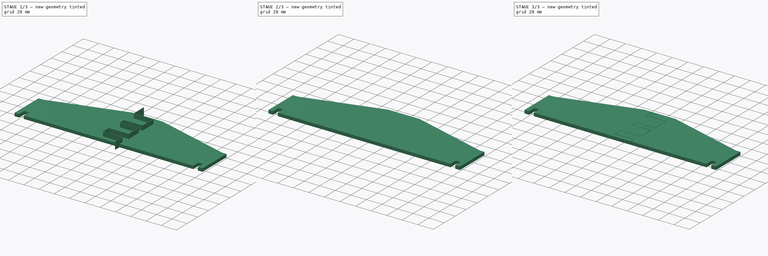
[diagram: build sequence overview — one tinted view per stage of 3, left to right]
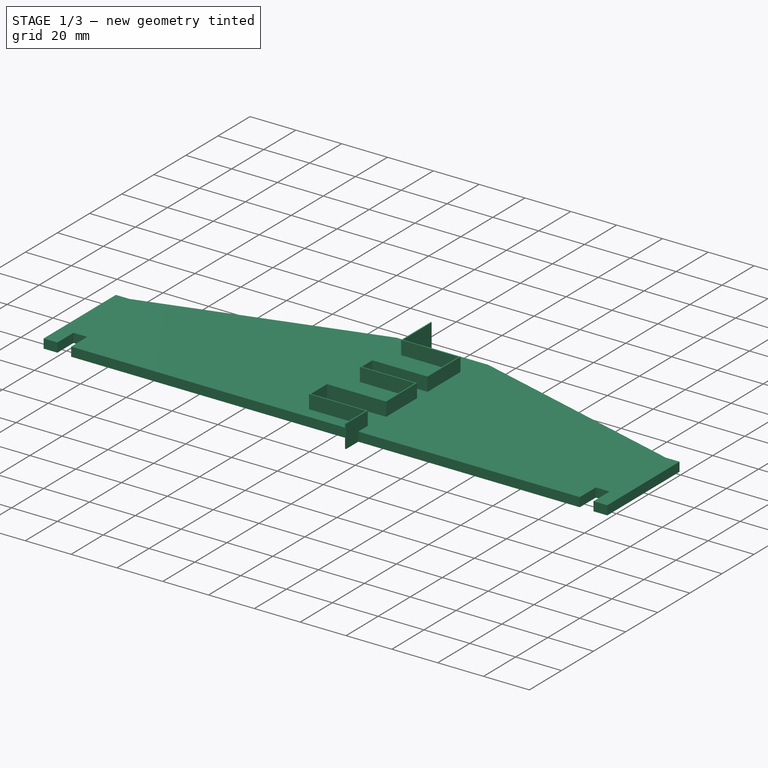
[diagram: stage 1 of 3 — iso view after this stage's code; geometry added in this stage tinted green]
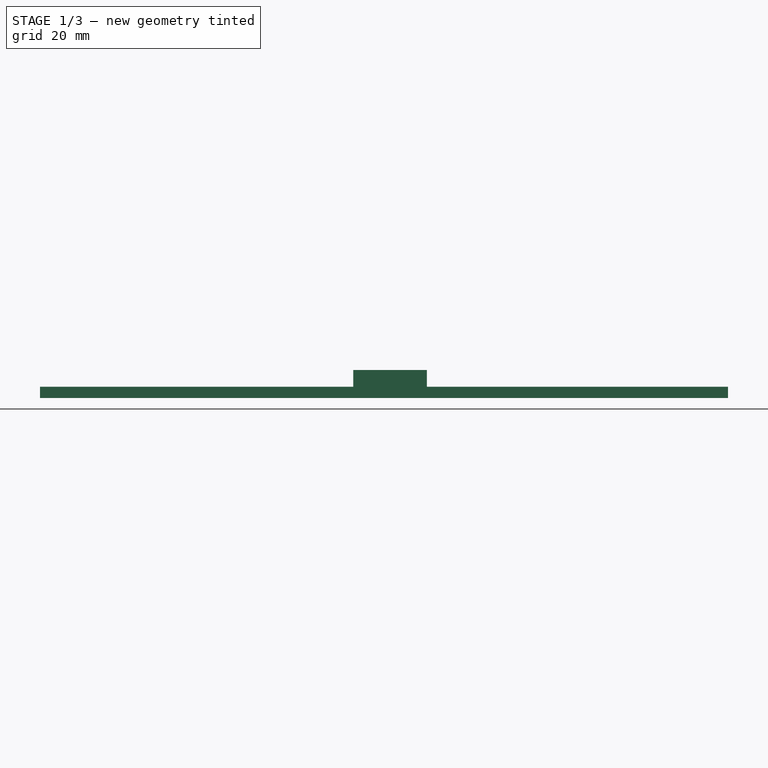
[diagram: stage 1 of 3 — front view after this stage's code; geometry added in this stage tinted green]
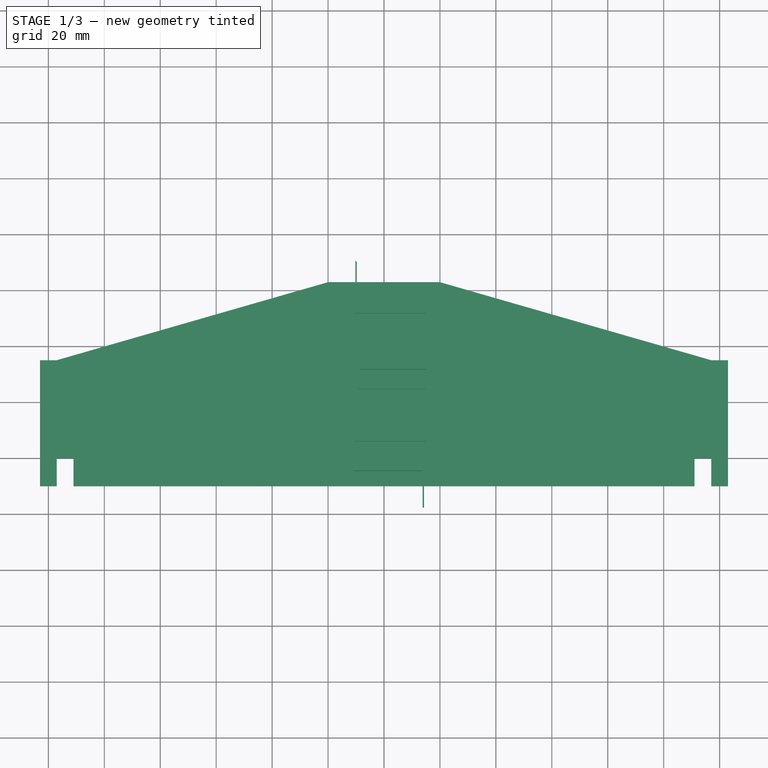
[diagram: stage 1 of 3 — top view after this stage's code; geometry added in this stage tinted green]
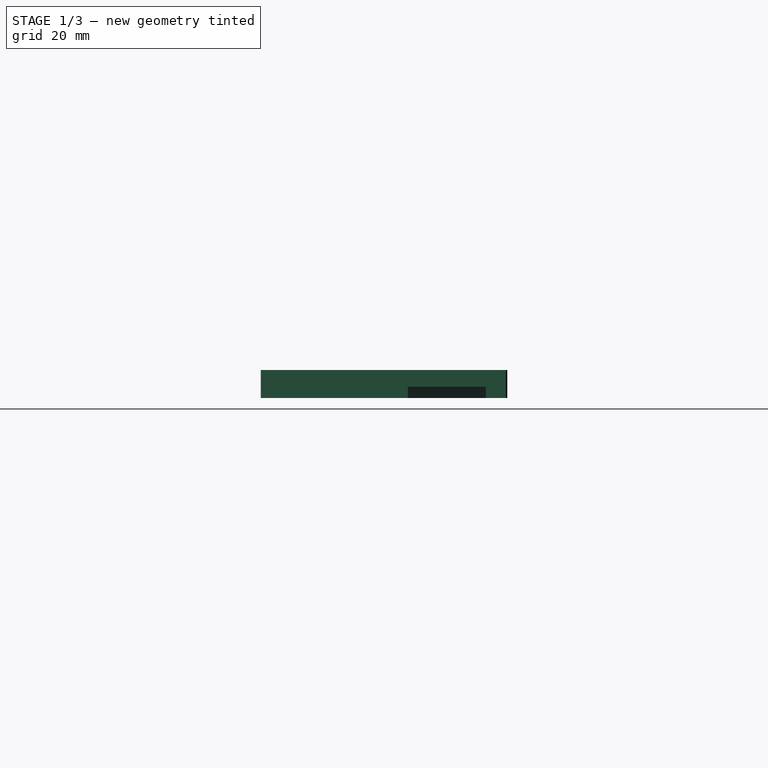
[diagram: stage 1 of 3 — right view after this stage's code; geometry added in this stage tinted green]
FCSTD DOCUMENT  (FreeCAD 0.19R24366 (Git))
Label: lid-holder-side
License: All rights reserved
LicenseURL: http://en.wikipedia.org/wiki/All_rights_reserved
objects: Sketcher::SketchObject×3, Part::FeaturePython×3, PartDesign::Body×2, Part::Extrusion×1, PartDesign::Pad×1, App::DocumentObjectGroup×1
note: 11 computed .brp shape members not serialized (recipe doc carries the construction recipe); baked Part::Feature solids carry a one-line shape summary decoded from their .brp

FEATURE [Sketcher::SketchObject] Sketch
  FullyConstrained = false
  MapMode = 5
  Support = -> [XY_Plane]
  sketch-geometry (18):
    g0: LineSegment StartX=-123 StartY=-10 StartZ=0 EndX=-123 EndY=35 EndZ=0
    g1: LineSegment StartX=-117 StartY=35 StartZ=0 EndX=-20 EndY=62.8984 EndZ=0
    g2: LineSegment StartX=-20 StartY=62.8984 StartZ=0 EndX=20 EndY=62.8984 EndZ=0
    g3: LineSegment StartX=20 StartY=62.8984 StartZ=0 EndX=117 EndY=35 EndZ=0
    g4: LineSegment StartX=123 StartY=35 StartZ=0 EndX=123 EndY=-10 EndZ=0
    g5: LineSegment StartX=123 StartY=-10 StartZ=0 EndX=117 EndY=-10 EndZ=0
    g6: LineSegment StartX=117 StartY=-10 StartZ=0 EndX=117 EndY=0 EndZ=0
    g7: LineSegment StartX=117 StartY=0 StartZ=0 EndX=111 EndY=0 EndZ=0
    g8: LineSegment StartX=111 StartY=0 StartZ=0 EndX=111 EndY=-10 EndZ=0
    g9: LineSegment StartX=111 StartY=-10 StartZ=0 EndX=105 EndY=-10 EndZ=0
    g10: LineSegment StartX=-111 StartY=-10 StartZ=0 EndX=-105 EndY=-10 EndZ=0
    g11: LineSegment StartX=-111 StartY=-4e-16 StartZ=0 EndX=-117 EndY=-4e-16 EndZ=0
    g12: LineSegment StartX=-117 StartY=-4e-16 StartZ=0 EndX=-117 EndY=-10 EndZ=0
    g13: LineSegment StartX=-117 StartY=-10 StartZ=0 EndX=-123 EndY=-10 EndZ=0
    g14: LineSegment StartX=-111 StartY=-4e-16 StartZ=0 EndX=-111 EndY=-10 EndZ=0
    g15: LineSegment StartX=-105 StartY=-10 StartZ=0 EndX=105 EndY=-10 EndZ=0
    g16: LineSegment StartX=-123 StartY=35 StartZ=0 EndX=-117 EndY=35 EndZ=0
    g17: LineSegment StartX=117 StartY=35 StartZ=0 EndX=123 EndY=35 EndZ=0
  constraints (48):
    c: Coincident(g0,g13)
    c: Coincident(g13,g12)
    c: Coincident(g12,g11)
    c: Coincident(g8,g7)
    c: Coincident(g9,g8)
    c: Coincident(g6,g5)
    c: Coincident(g4,g5)
    c: Horizontal(g11)
    c: Horizontal(g7)
    c: Horizontal(g5)
    c: Horizontal(g9)
    c: Horizontal(g13)
    c: Horizontal(g10)
    c: Vertical(g0)
    c: Vertical(g12)
    c: Vertical(g14)
    c: Vertical(g8)
    c: Vertical(g6)
    c: Vertical(g4)
    c: Coincident(g1,g2)
    c: Coincident(g3,g2)
    c: Coincident(g7,g6)
    c: Coincident(g14,g10)
    c: Coincident(g11,g14)
    c: Equal(g13,g11)
    c: Equal(g11,g10)
    c: Equal(g9,g7)
    c: Equal(g7,g5)
    c: DistanceX(g5,g5) = 6
    c: DistanceY(g12,g12) = 10
    c: Equal(g12,g14)
    c: Equal(g14,g8)
    c: Equal(g8,g6)
    c: DistanceX(g2,g2) = 40
    c: Symmetric(g1,g2,g-2)
    c: DistanceX(g11,g7) = 222
    c: Symmetric(g11,g7,g-1)
    c: DistanceY(g0,g0) = 45
    c: Coincident(g15,g10)
    c: Coincident(g15,g9)
    c: Horizontal(g15)
    c: DistanceY(g4,g4) = 45
    c: Coincident(g16,g0)
    c: Coincident(g16,g1)
    c: Horizontal(g16)
    c: Coincident(g17,g3)
    c: Coincident(g17,g4)
    c: Horizontal(g17)
FEATURE [Sketcher::SketchObject] Sketch001
  FullyConstrained = true
  MapMode = 5
  Support = -> [XY_Plane]
FEATURE [Sketcher::SketchObject] Sketch002
  FullyConstrained = false
  MapMode = 5
  Support = -> [XY_Plane001]
  sketch-geometry (24):
    g0: LineSegment StartX=-10.2339 StartY=70.534 StartZ=0 EndX=-10.2339 EndY=51.739 EndZ=0
    g1: LineSegment StartX=-10.2339 StartY=51.739 StartZ=0 EndX=14.8242 EndY=51.739 EndZ=0
    g2: LineSegment StartX=14.8242 StartY=51.739 StartZ=0 EndX=14.8242 EndY=32.2373 EndZ=0
    g3: LineSegment StartX=14.8242 StartY=32.2373 StartZ=0 EndX=-9.24099 EndY=32.2373 EndZ=0
    g4: LineSegment StartX=-9.24099 StartY=32.2373 StartZ=0 EndX=-9.24099 EndY=24.648 EndZ=0
    g5: LineSegment StartX=-9.24099 StartY=24.648 StartZ=0 EndX=14.8148 EndY=24.648 EndZ=0
    g6: LineSegment StartX=14.8148 StartY=24.648 StartZ=0 EndX=14.8148 EndY=6.42188 EndZ=0
    g7: LineSegment StartX=14.8148 StartY=6.42188 StartZ=0 EndX=-10.9786 EndY=6.42188 EndZ=0
    g8: LineSegment StartX=-10.9786 StartY=6.42188 StartZ=0 EndX=-10.9786 EndY=-4.60801 EndZ=0
    g9: LineSegment StartX=-10.9786 StartY=-4.60801 StartZ=0 EndX=13.8165 EndY=-4.60801 EndZ=0
    g10: LineSegment StartX=13.8165 StartY=-4.60801 StartZ=0 EndX=13.8165 EndY=-17.5858 EndZ=0
    g11: LineSegment StartX=13.8165 StartY=-17.5858 StartZ=0 EndX=14.3165 EndY=-17.5858 EndZ=0
    g12: LineSegment StartX=14.3165 StartY=-17.5858 StartZ=0 EndX=14.3165 EndY=-4.10801 EndZ=0
    g13: LineSegment StartX=14.3165 StartY=-4.10801 StartZ=0 EndX=-10.4786 EndY=-4.10801 EndZ=0
    g14: LineSegment StartX=-10.4786 StartY=-4.10801 StartZ=0 EndX=-10.4786 EndY=5.92188 EndZ=0
    g15: LineSegment StartX=-10.4786 StartY=5.92188 StartZ=0 EndX=15.3148 EndY=5.92188 EndZ=0
    g16: LineSegment StartX=15.3148 StartY=5.92188 StartZ=0 EndX=15.3148 EndY=25.148 EndZ=0
    g17: LineSegment StartX=15.3148 StartY=25.148 StartZ=0 EndX=-8.74099 EndY=25.148 EndZ=0
    g18: LineSegment StartX=-8.74099 StartY=25.148 StartZ=0 EndX=-8.74099 EndY=31.7373 EndZ=0
    g19: LineSegment StartX=-8.74099 StartY=31.7373 StartZ=0 EndX=15.3242 EndY=31.7373 EndZ=0
    g20: LineSegment StartX=15.3242 StartY=31.7373 StartZ=0 EndX=15.3242 EndY=52.239 EndZ=0
    g21: LineSegment StartX=15.3242 StartY=52.239 StartZ=0 EndX=-9.73389 EndY=52.239 EndZ=0
    g22: LineSegment StartX=-9.73389 StartY=52.239 StartZ=0 EndX=-9.73389 EndY=70.0375 EndZ=0
    g23: LineSegment StartX=-9.73389 StartY=70.0375 StartZ=0 EndX=-10.2339 EndY=70.534 EndZ=0
  constraints (58):
    c: Vertical(g0)
    c: Coincident(g0,g1)
    c: Horizontal(g1)
    c: Coincident(g1,g2)
    c: Vertical(g2)
    c: Coincident(g2,g3)
    c: Horizontal(g3)
    c: Coincident(g3,g4)
    c: Vertical(g4)
    c: Coincident(g4,g5)
    c: Horizontal(g5)
    c: Coincident(g5,g6)
    c: Vertical(g6)
    c: Coincident(g6,g7)
    c: Horizontal(g7)
    c: Coincident(g7,g8)
    c: Vertical(g8)
    c: Coincident(g8,g9)
    c: Horizontal(g9)
    c: Coincident(g9,g10)
    c: Vertical(g10)
    c: Coincident(g10,g11)
    c: Horizontal(g11)
    c: Coincident(g11,g12)
    c: Vertical(g12)
    c: Coincident(g12,g13)
    c: Horizontal(g13)
    c: Coincident(g13,g14)
    c: Vertical(g14)
    c: Coincident(g14,g15)
    c: Horizontal(g15)
    c: Coincident(g15,g16)
    c: Vertical(g16)
    c: Coincident(g16,g17)
    c: Coincident(g17,g18)
    c: Vertical(g18)
    c: Coincident(g18,g19)
    c: Horizontal(g19)
    c: Coincident(g19,g20)
    c: Coincident(g20,g21)
    c: Horizontal(g21)
    c: Coincident(g21,g22)
    c: Vertical(g22)
    c: Coincident(g22,g23)
    c: Coincident(g23,g0)
    c: DistanceX(g0,g22) = 0.5
    c: DistanceY(g0,g21) = 0.5
    c: DistanceX(g1,g20) = 0.5
    c: DistanceX(g2,g19) = 0.5
    c: DistanceY(g19,g2) = 0.5
    c: DistanceX(g3,g18) = 0.5
    c: DistanceY(g4,g17) = 0.5
    c: DistanceY(g5,g16) = 0.5
    c: DistanceX(g5,g16) = 0.5
    c: DistanceY(g15,g6) = 0.5
    c: DistanceX(g7,g14) = 0.5
    c: DistanceY(g8,g13) = 0.5
    c: DistanceX(g9,g12) = 0.5
FEATURE [PartDesign::Body] Body001
  Group = -> [Sketch002]
  Origin = -> Origin001
FEATURE [Part::Extrusion] Extrude
  Base = -> Sketch002
  Dir = (0,0,1)
  DirMode = 2
  FaceMakerClass = Part::FaceMakerBullseye
  LengthFwd = 10
  LengthRev = 0
  Solid = true
  Symmetric = false
FEATURE [PartDesign::Pad] Pad
  Direction = (1,1,1)
  Length = 4
  Length2 = 100
  Profile = -> Sketch
  Type = 0
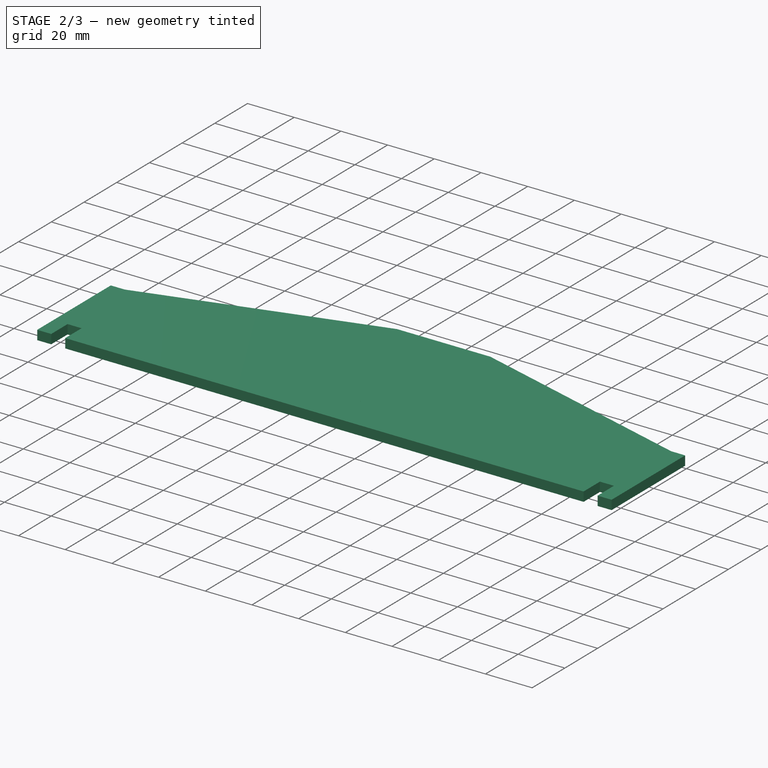
[diagram: stage 2 of 3 — iso view after this stage's code; geometry added in this stage tinted green]
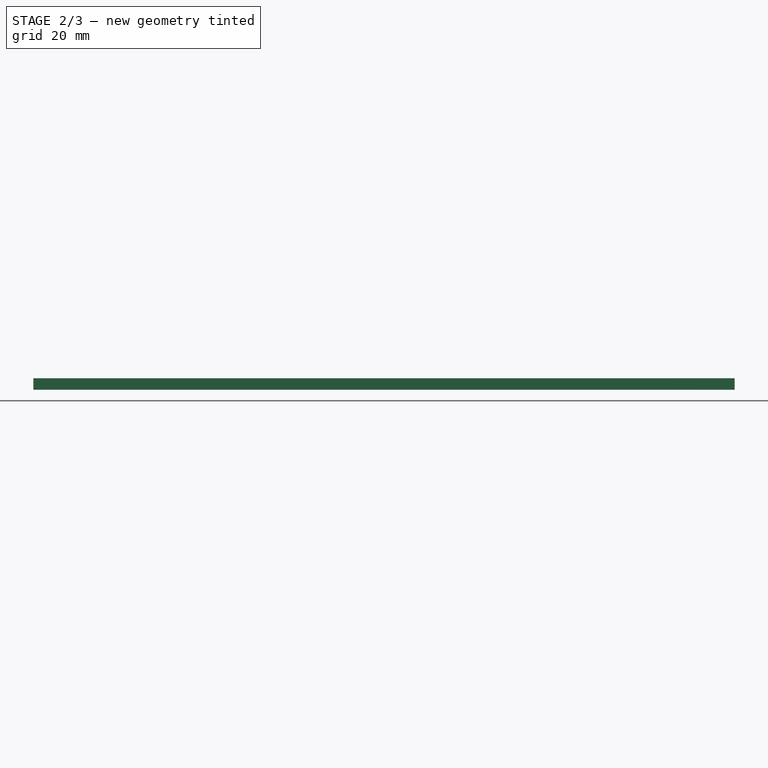
[diagram: stage 2 of 3 — front view after this stage's code; geometry added in this stage tinted green]
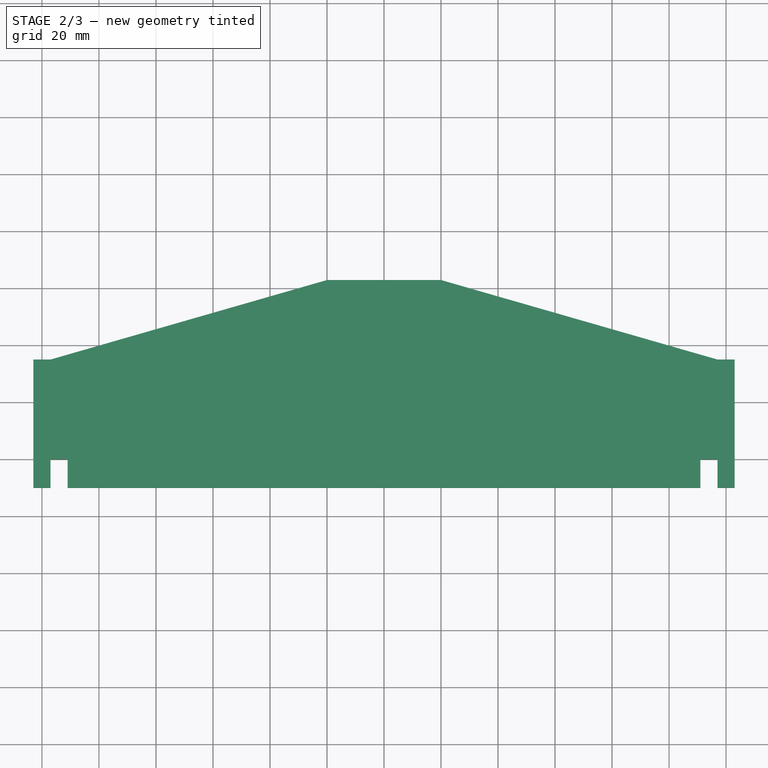
[diagram: stage 2 of 3 — top view after this stage's code; geometry added in this stage tinted green]
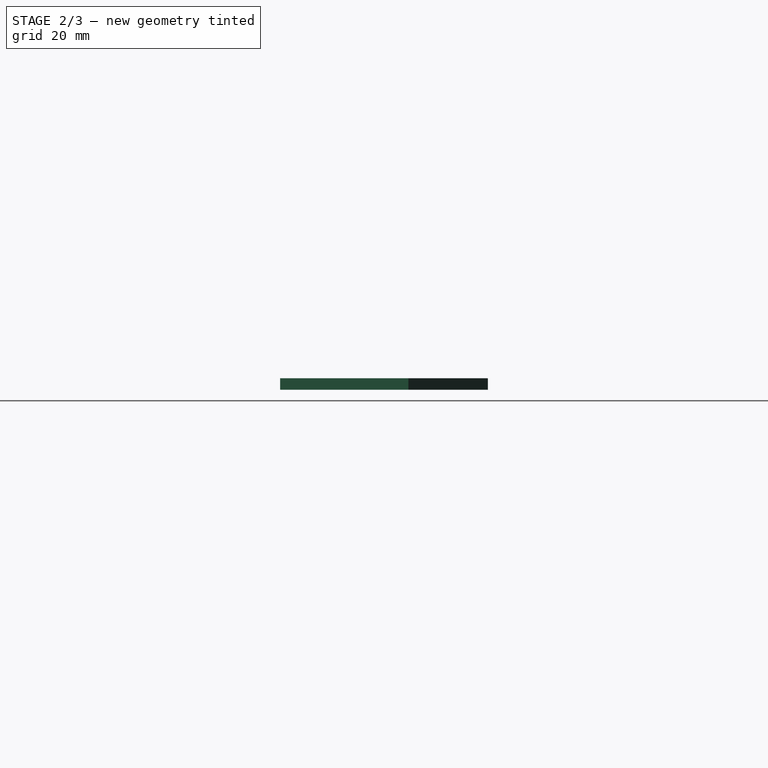
[diagram: stage 2 of 3 — right view after this stage's code; geometry added in this stage tinted green]
FEATURE [PartDesign::Body] Body
  Group = -> [Sketch,Pad,Sketch001]
  Origin = -> Origin
  Tip = -> Pad
FEATURE [Part::FeaturePython] Slice  # WARN: FeaturePython — macro-defined, semantics opaque (R4)
  Base = -> Body
  Mode = 1
  Tolerance = 0
  Tools = -> [Extrude]
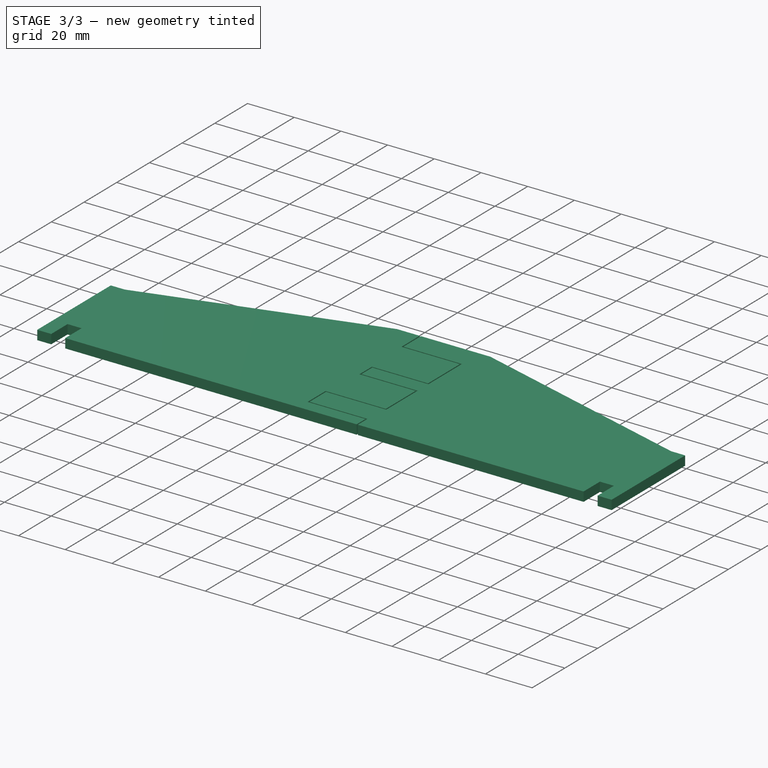
[diagram: stage 3 of 3 — iso view after this stage's code; geometry added in this stage tinted green]
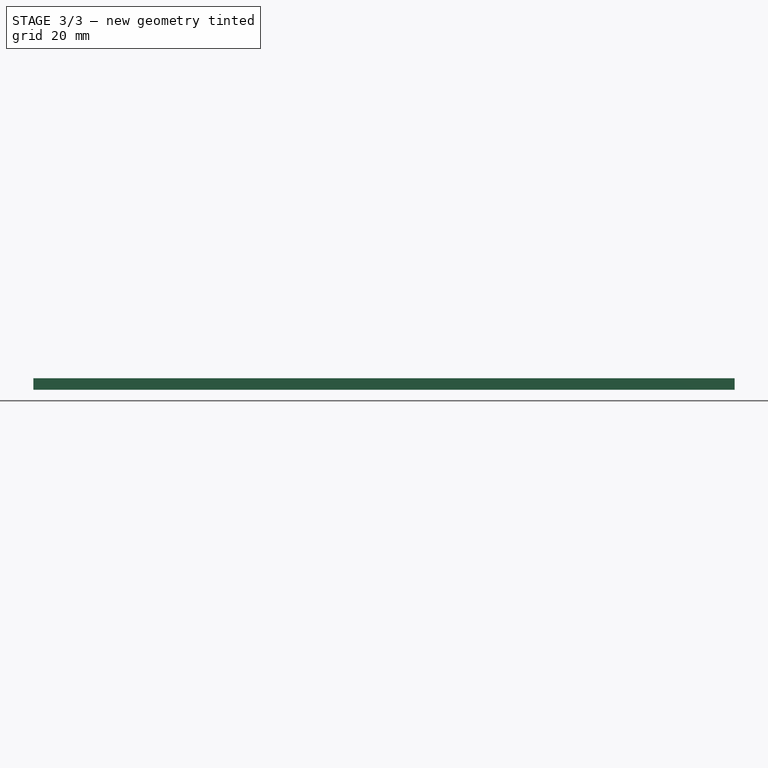
[diagram: stage 3 of 3 — front view after this stage's code; geometry added in this stage tinted green]
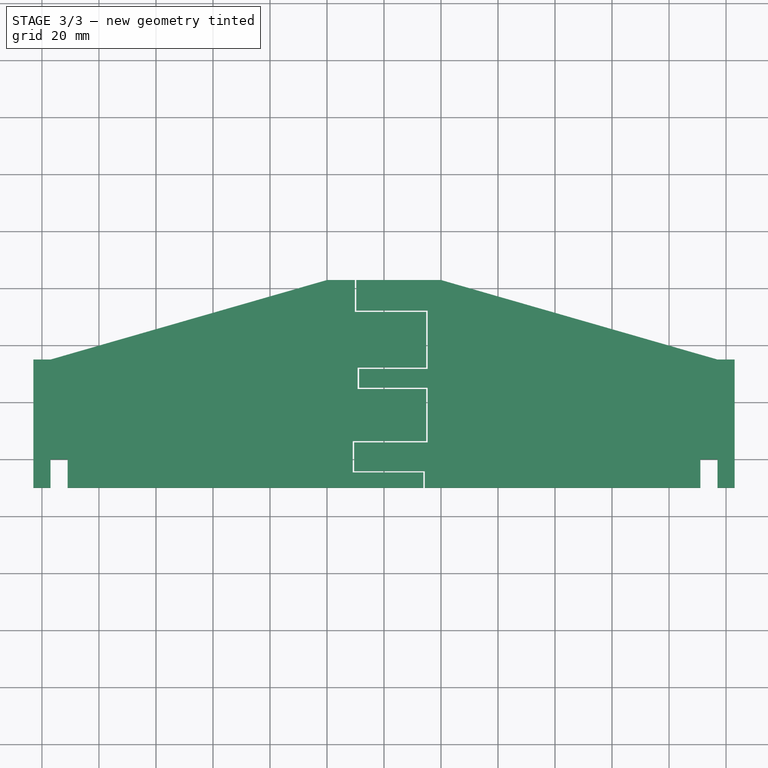
[diagram: stage 3 of 3 — top view after this stage's code; geometry added in this stage tinted green]
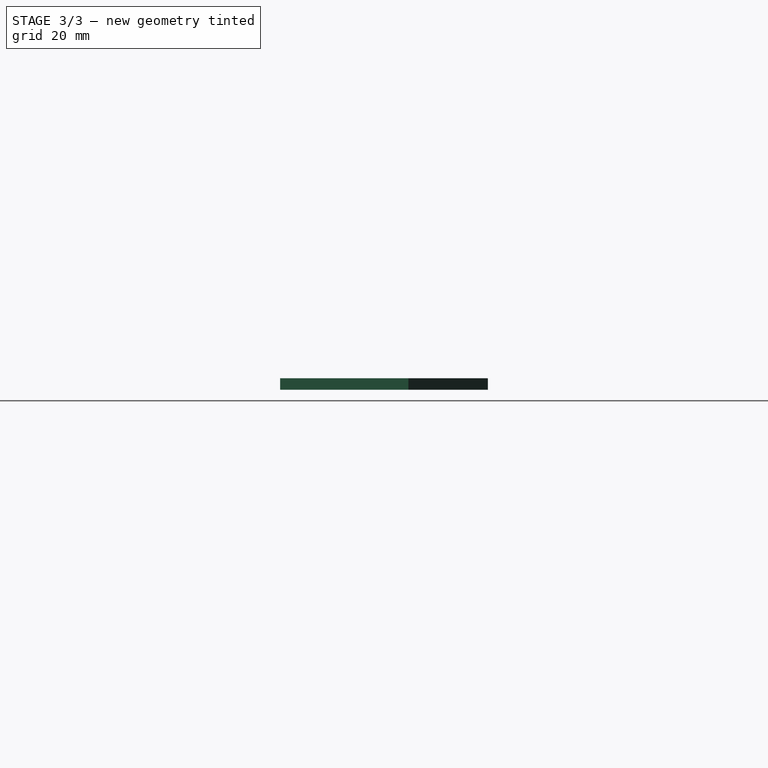
[diagram: stage 3 of 3 — right view after this stage's code; geometry added in this stage tinted green]
FEATURE [Part::FeaturePython] Slice_child0  label="Slice.0"  # WARN: FeaturePython — macro-defined, semantics opaque (R4)
  Base = -> Slice
  FilterType = 1
  Invert = false
  OverrideMaxVal = 0
  WindowFrom = 80
  WindowTo = 100
  items = 0
FEATURE [Part::FeaturePython] Slice_child2  label="Slice.2"  # WARN: FeaturePython — macro-defined, semantics opaque (R4)
  Base = -> Slice
  FilterType = 1
  Invert = false
  OverrideMaxVal = 0
  WindowFrom = 80
  WindowTo = 100
  items = 2
FEATURE [App::DocumentObjectGroup] GrExplode_Slice  label="Exploded Slice"
  Group = -> [Slice_child0,Slice_child2]
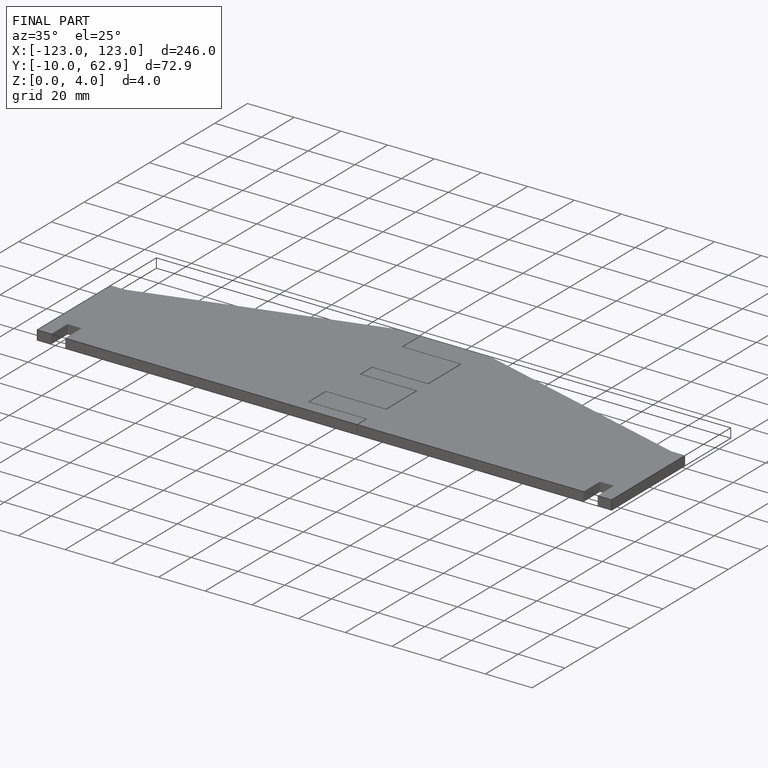
[diagram: finished part — iso view with bounding-box wireframe]
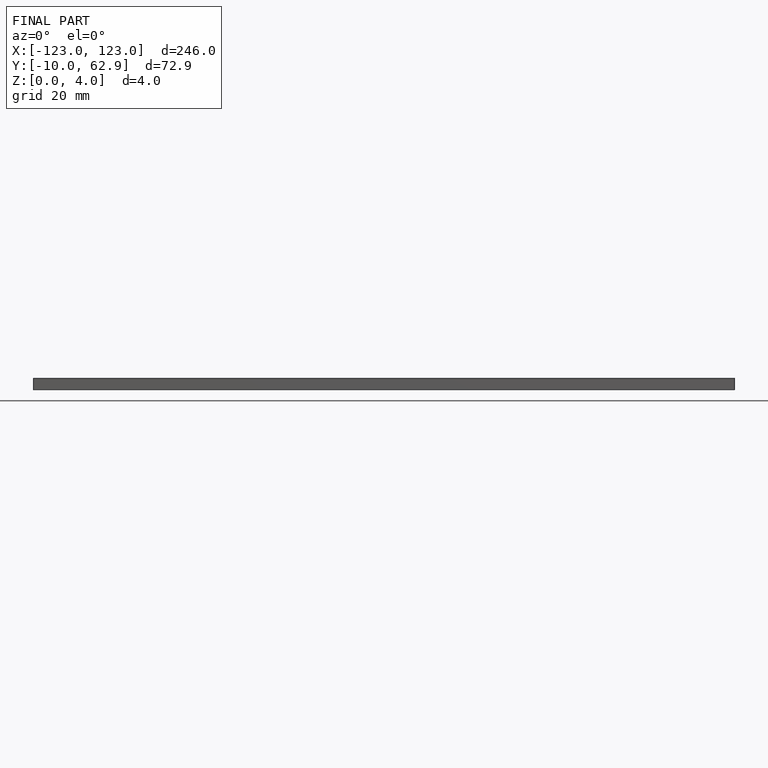
[diagram: finished part — front view with bounding-box wireframe]
